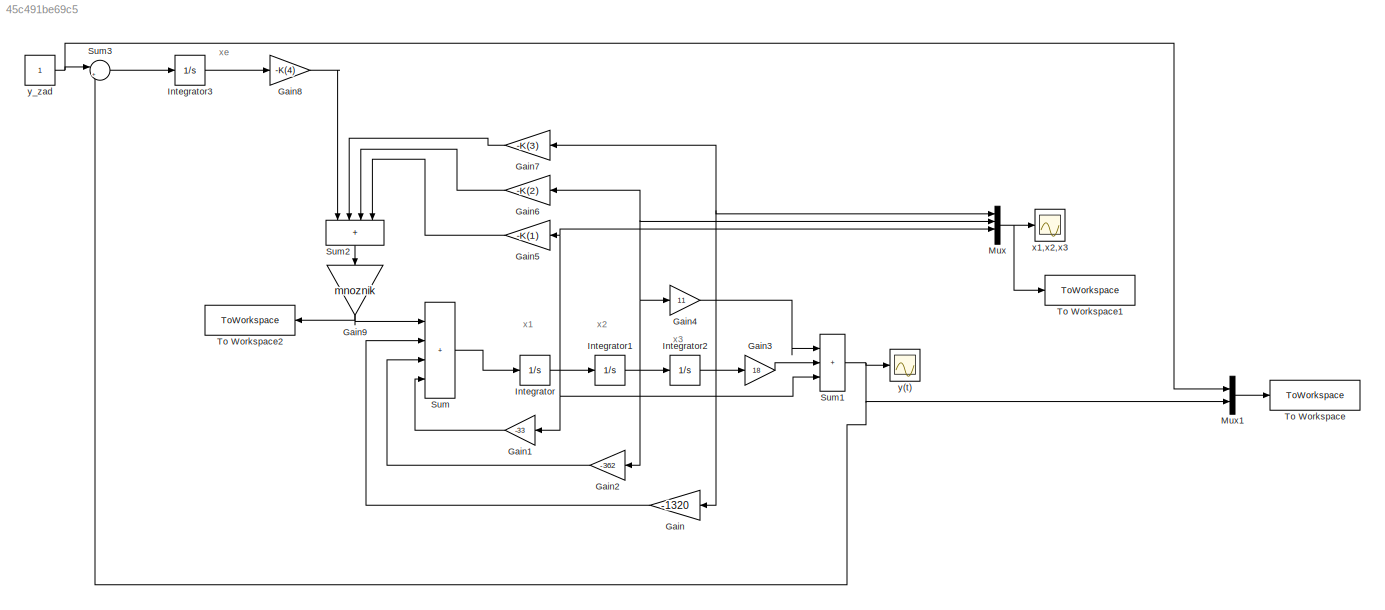
MODEL slx_45c491be69c5
KIND model
CONFIG AbsTol = auto
CONFIG EnableMultiTasking = off
CONFIG FixedStep = auto
CONFIG MaxStep = auto
CONFIG MinStep = auto
CONFIG RelTol = 1e-3
CONFIG SampleTimeConstraint = Unconstrained
CONFIG SolverName = VariableStepAuto
CONFIG StartTime = 0.0
CONFIG StopTime = 50
BLOCK [Gain] Gain
  Gain = -1320
  NameLocation = top
BLOCK [Gain] Gain1
  Gain = -33
  NameLocation = top
BLOCK [Gain] Gain2
  Gain = -362
  NameLocation = top
BLOCK [Gain] Gain3
  Gain = 18
BLOCK [Gain] Gain4
  Gain = 11
BLOCK [Gain] Gain5
  Gain = -K(1)
  NameLocation = top
BLOCK [Gain] Gain6
  Gain = -K(2)
  NameLocation = top
BLOCK [Gain] Gain7
  Gain = -K(3)
  NameLocation = top
BLOCK [Gain] Gain8
  Gain = -K(4)
BLOCK [Gain] Gain9
  Gain = mnoznik
  NameLocation = left
BLOCK [Integrator] Integrator
  Ports = [1, 1]
BLOCK [Integrator] Integrator1
  Ports = [1, 1]
BLOCK [Integrator] Integrator2
  Ports = [1, 1]
BLOCK [Integrator] Integrator3
  Ports = [1, 1]
BLOCK [Mux] Mux
  DisplayOption = bar
  Ports = [4, 1]
BLOCK [Mux] Mux1
  DisplayOption = bar
  Inputs = 2
  Ports = [2, 1]
BLOCK [Sum] Sum
  IconShape = rectangular
  Inputs = |++++
  Ports = [4, 1]
BLOCK [Sum] Sum1
  IconShape = rectangular
  Inputs = |+++
  Ports = [3, 1]
BLOCK [Sum] Sum2
  IconShape = rectangular
  Inputs = |++++
  NameLocation = left
  Ports = [4, 1]
BLOCK [Sum] Sum3
  Inputs = |+-
  Ports = [2, 1]
BLOCK [ToWorkspace] To Workspace
  FixptAsFi = on
  MaxDataPoints = inf
  Ports = [1]
  SampleTime = -1
  SaveFormat = Structure With Time
  VariableName = y
BLOCK [ToWorkspace] To Workspace1
  FixptAsFi = on
  MaxDataPoints = inf
  Ports = [1]
  SampleTime = -1
  SaveFormat = Structure With Time
  VariableName = x
BLOCK [ToWorkspace] To Workspace2
  FixptAsFi = on
  MaxDataPoints = inf
  NameLocation = top
  Ports = [1]
  SampleTime = -1
  SaveFormat = Structure With Time
  VariableName = u
BLOCK [Scope] x1,x2,x3
  Floating = off
  NumInputPorts = 1
  Ports = [1]
  ScopeSpecificationString = Simulink.scopes.TimeScopeBlockCfg('CurrentConfiguration', extmgr.ConfigurationSet(extmgr.Configuration('Core','General UI',true),extmgr.Configuration('Core','Source UI',true),extmgr.Configuration('Sources','WiredSimulink',true,'DataLoggingVariableName','ScopeData2'),extmgr.Configuration('Visuals','Time Domain',true,'SerializedDisplays',{struct('MinYLimReal','-0.01043','MaxYLimReal','0.06225','YLab...<+1438ch>
BLOCK [Scope] y(t)
  Floating = off
  NumInputPorts = 1
  Ports = [1]
  ScopeSpecificationString = Simulink.scopes.TimeScopeBlockCfg('CurrentConfiguration', extmgr.ConfigurationSet(extmgr.Configuration('Core','General UI',true),extmgr.Configuration('Core','Source UI',true),extmgr.Configuration('Sources','WiredSimulink',true),extmgr.Configuration('Visuals','Time Domain',true,'SerializedDisplays',{struct('MinYLimReal','-0.00097','MaxYLimReal','0.00875','YLabelReal','','MinYLimMag','0.00000','MaxY...<+1353ch>
BLOCK [Constant] y_zad
ANNOTATION (root): x1
ANNOTATION (root): x2
ANNOTATION (root): x3
ANNOTATION (root): xe
LINE Gain1:1 -> Sum:4
LINE Gain2:1 -> Sum:3
LINE Gain3:1 -> Sum1:2
LINE Gain4:1 -> Sum1:1
LINE Gain5:1 -> Sum2:4
LINE Gain6:1 -> Sum2:3
LINE Gain7:1 -> Sum2:2
LINE Gain8:1 -> Sum2:1
NET Gain9:1 -> Sum:1, To Workspace2:1
LINE Gain:1 -> Sum:2
NET Integrator1:1 -> Gain2:1, Gain4:1, Gain6:1, Integrator2:1, Mux:2
NET Integrator2:1 -> Gain3:1, Gain7:1, Gain:1, Mux:1
LINE Integrator3:1 -> Gain8:1
NET Integrator:1 -> Gain1:1, Gain5:1, Integrator1:1, Mux:3, Sum1:3
LINE Mux1:1 -> To Workspace:1
NET Mux:1 -> To Workspace1:1, x1,x2,x3:1
NET Sum1:1 -> Mux1:2, Sum3:2, y(t):1
LINE Sum2:1 -> Gain9:1
LINE Sum3:1 -> Integrator3:1
LINE Sum:1 -> Integrator:1
NET y_zad:1 -> Mux1:1, Sum3:1
note: NET lines group one-source signal fan-out (src -> all destinations, sorted); 1:1 wires keep LINE
